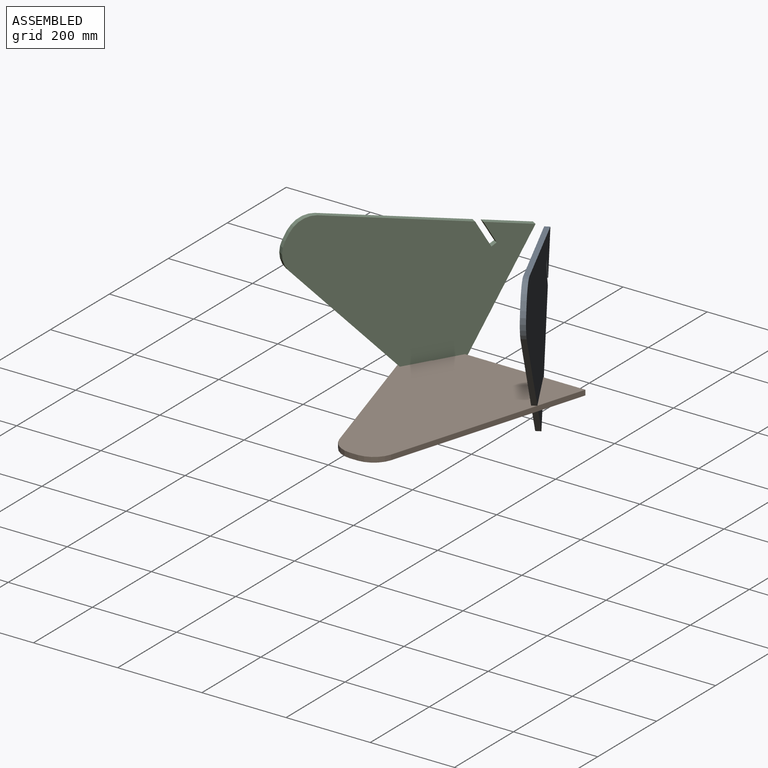
[diagram: assembled view]
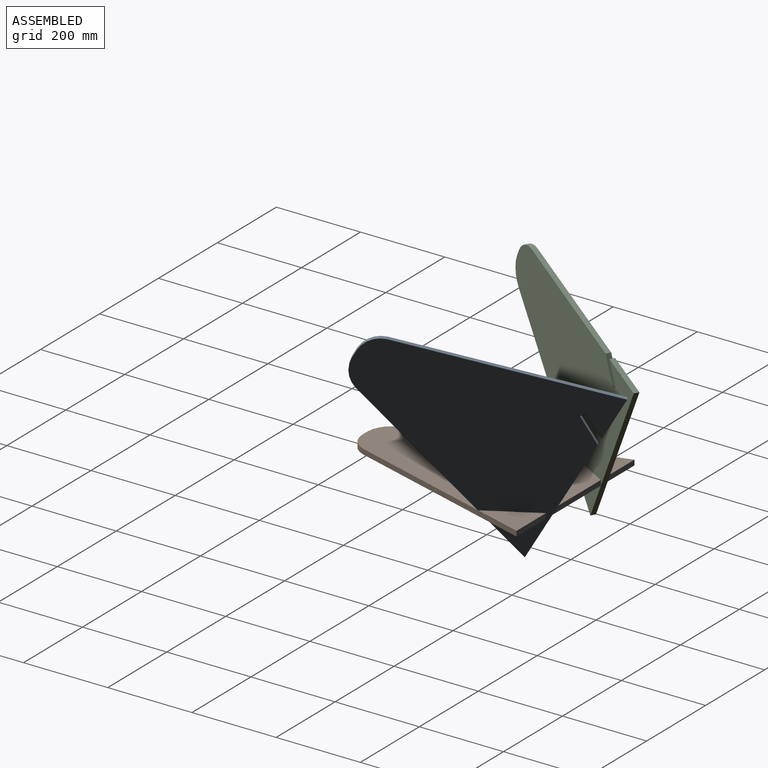
[diagram: assembled view, second angle]
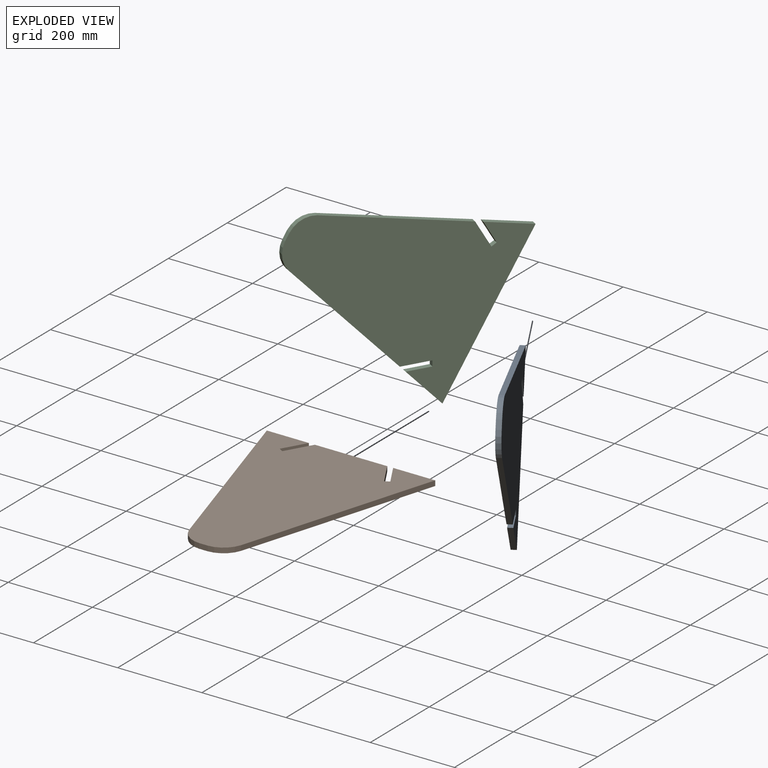
[diagram: exploded view]
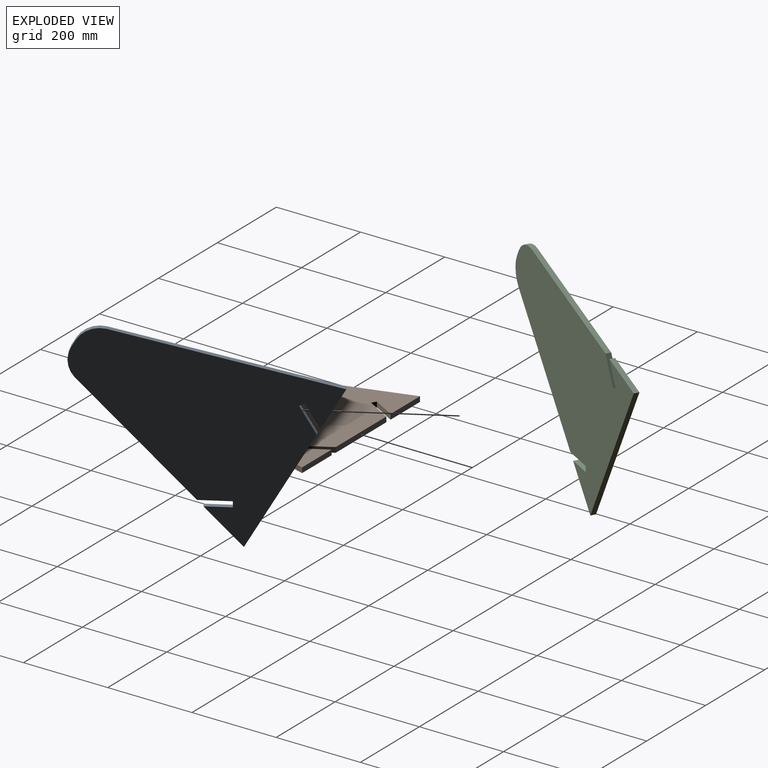
[diagram: exploded view, second angle]
ASSEMBLY  parts=3 mates=2
PART A: 16 faces, bbox 400x500x12.2 mm
  f0: plane 54.02x31.19mm, normal (0.87,-0.5,0), area 761mm2, adj f1,f13,f14,f15
  f1: plane 100x12.2mm, normal (0,1,0), area 1220mm2, adj f0,f2,f14,f15
  f2: plane 461.69x138.51mm, normal (-0.96,-0.29,0), area 5880.6mm2, adj f1,f3,f14,f15
  f3: cylinder r=56.19mm len=51.49mm, axis (0,0,-1), area 833.4mm2, adj f2,f4,f14,f15
  f4: plane 20x12.2mm, normal (0,-1,0), area 244mm2, adj f3,f5,f14,f15
  f5: cylinder r=56.19mm len=51.49mm, axis (0,0,-1), area 833.4mm2, adj f4,f6,f14,f15
  f6: plane 333.84x100.15mm, normal (0.96,-0.29,0), area 4252.2mm2, adj f5,f7,f14,f15
  f7: plane 60.62x35mm, normal (0.87,0.5,0), area 854mm2, adj f6,f8,f14,f15
  f8: plane 12.2x11.43mm, normal (0.5,-0.87,0), area 161mm2, adj f7,f9,f14,f15
  f9: plane 49.85x28.78mm, normal (-0.87,-0.5,0), area 702.2mm2, adj f8,f10,f14,f15
  f10: plane 110.47x33.14mm, normal (0.96,-0.29,0), area 1407.1mm2, adj f9,f11,f14,f15
  f11: plane 284.76x12.2mm, normal (0,1,0), area 3474mm2, adj f10,f12,f14,f15
  f12: plane 60.62x35mm, normal (-0.87,0.5,0), area 854mm2, adj f11,f13,f14,f15
  f13: plane 12.2x11.43mm, normal (0.5,0.87,0), area 161mm2, adj f0,f12,f14,f15
  f14: plane 500x400mm, normal (0,0,1), area 122630mm2, adj f0,f1,f2,f3,f4,f5,f6,f7
  f15: plane 500x400mm, normal (0,0,-1), area 122630mm2, adj f0,f1,f2,f3,f4,f5,f6,f7
PART B: 16 faces, bbox 400x500x12.2 mm
  f0: plane 12.2x10.57mm, normal (0.5,0.87,0), area 148.8mm2, adj f1,f13,f14,f15
  f1: plane 54.52x31.48mm, normal (0.87,-0.5,0), area 768.1mm2, adj f0,f2,f14,f15
  f2: plane 100x12.2mm, normal (0,1,0), area 1220mm2, adj f1,f3,f14,f15
  f3: plane 461.69x138.51mm, normal (-0.96,-0.29,0), area 5880.6mm2, adj f2,f4,f14,f15
  f4: cylinder r=56.19mm len=51.49mm, axis (0,0,-1), area 833.4mm2, adj f3,f5,f14,f15
  f5: plane 20x12.2mm, normal (0,-1,0), area 244mm2, adj f4,f6,f14,f15
  f6: cylinder r=56.19mm len=51.49mm, axis (0,0,-1), area 833.4mm2, adj f5,f7,f14,f15
  f7: plane 461.69x138.51mm, normal (0.96,-0.29,0), area 5880.6mm2, adj f6,f8,f14,f15
  f8: plane 100x12.2mm, normal (0,1,0), area 1220mm2, adj f7,f9,f14,f15
  f9: plane 54.52x31.48mm, normal (-0.87,-0.5,0), area 768.1mm2, adj f8,f10,f14,f15
  f10: plane 12.2x10.57mm, normal (-0.5,0.87,0), area 148.8mm2, adj f9,f11,f14,f15
  f11: plane 60.62x35mm, normal (0.87,0.5,0), area 854mm2, adj f10,f12,f14,f15
  f12: plane 171.83x12.2mm, normal (0,1,0), area 2096.3mm2, adj f11,f13,f14,f15
  f13: plane 60.62x35mm, normal (-0.87,0.5,0), area 854mm2, adj f0,f12,f14,f15
  f14: plane 500x400mm, normal (0,0,1), area 122723.6mm2, adj f0,f1,f2,f3,f4,f5,f6,f7
  f15: plane 500x400mm, normal (0,0,-1), area 122723.6mm2, adj f0,f1,f2,f3,f4,f5,f6,f7
PART C: 16 faces, bbox 400x500x12.2 mm
  f0: plane 12.2x11.43mm, normal (0.5,-0.87,0), area 161mm2, adj f1,f13,f14,f15
  f1: plane 49.85x28.78mm, normal (-0.87,-0.5,0), area 702.2mm2, adj f0,f2,f14,f15
  f2: plane 110.47x33.14mm, normal (0.96,-0.29,0), area 1407.1mm2, adj f1,f3,f14,f15
  f3: plane 400x12.2mm, normal (0,1,0), area 4880mm2, adj f2,f4,f14,f15
  f4: plane 110.47x33.14mm, normal (-0.96,-0.29,0), area 1407.1mm2, adj f3,f5,f14,f15
  f5: plane 49.85x28.78mm, normal (0.87,-0.5,0), area 702.2mm2, adj f4,f6,f14,f15
  f6: plane 12.2x11.43mm, normal (-0.5,-0.87,0), area 161mm2, adj f5,f7,f14,f15
  f7: plane 60.62x35mm, normal (-0.87,0.5,0), area 854mm2, adj f6,f8,f14,f15
  f8: plane 333.84x100.15mm, normal (-0.96,-0.29,0), area 4252.2mm2, adj f7,f9,f14,f15
  f9: cylinder r=56.19mm len=51.49mm, axis (0,0,-1), area 833.4mm2, adj f8,f10,f14,f15
  f10: plane 20x12.2mm, normal (0,-1,0), area 244mm2, adj f9,f11,f14,f15
  f11: cylinder r=56.19mm len=51.49mm, axis (0,0,-1), area 833.4mm2, adj f10,f12,f14,f15
  f12: plane 333.84x100.15mm, normal (0.96,-0.29,0), area 4252.2mm2, adj f11,f13,f14,f15
  f13: plane 60.62x35mm, normal (0.87,0.5,0), area 854mm2, adj f0,f12,f14,f15
  f14: plane 500x400mm, normal (0,0,1), area 122661.8mm2, adj f0,f1,f2,f3,f4,f5,f6,f7
  f15: plane 500x400mm, normal (0,0,-1), area 122661.8mm2, adj f0,f1,f2,f3,f4,f5,f6,f7
PLACE A rot(axis=(-0.5,0.87,0),90deg) t=(-83.23,31.95,244.8)mm
PLACE B t=(-251.63,-75.18,31.03)mm
PLACE C rot(axis=(-0.5,-0.87,0),90deg) t=(-420.02,31.95,244.8)mm
MATE fastened C.f6 <-> B.f0  axis (-0.5,-0.87,0) through (-377.82,117.24,37.13)mm
MATE fastened A.f8 <-> B.f10  axis (0.5,-0.87,0) through (-125.43,117.24,37.13)mm
